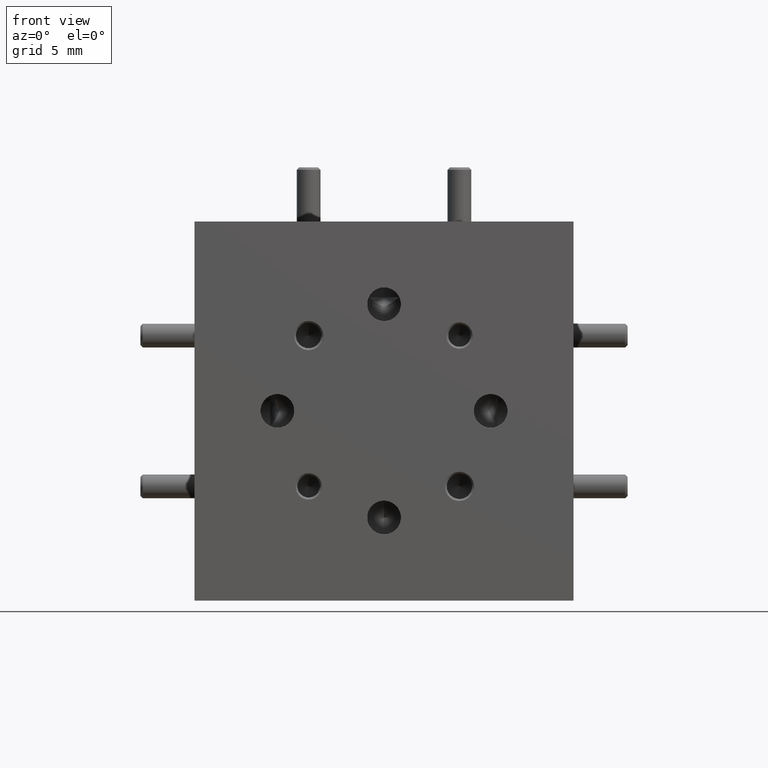
[diagram: clean part render]
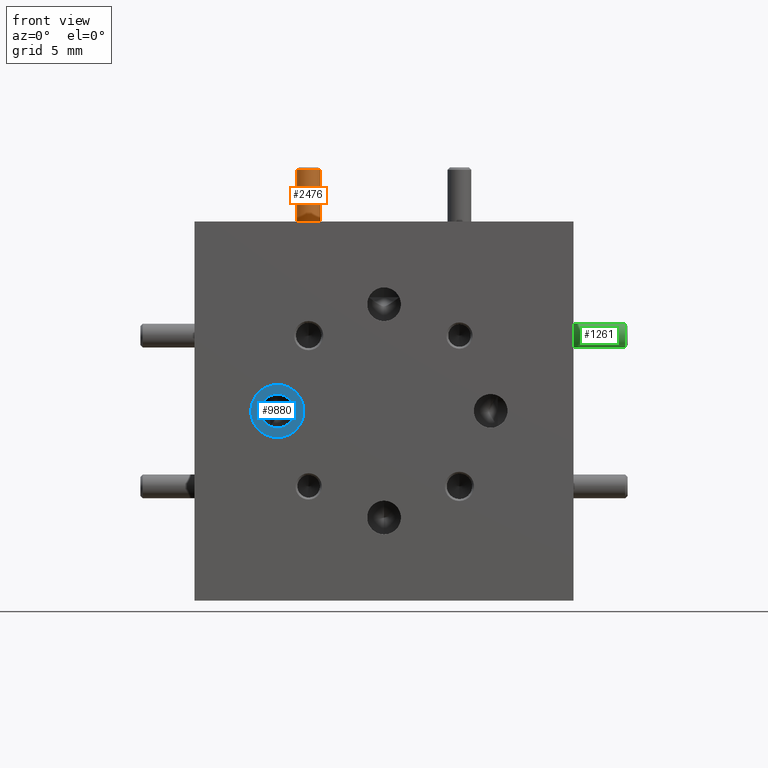
[diagram: same view with three faces highlighted in distinct colors, each labeled with its STEP entity id]
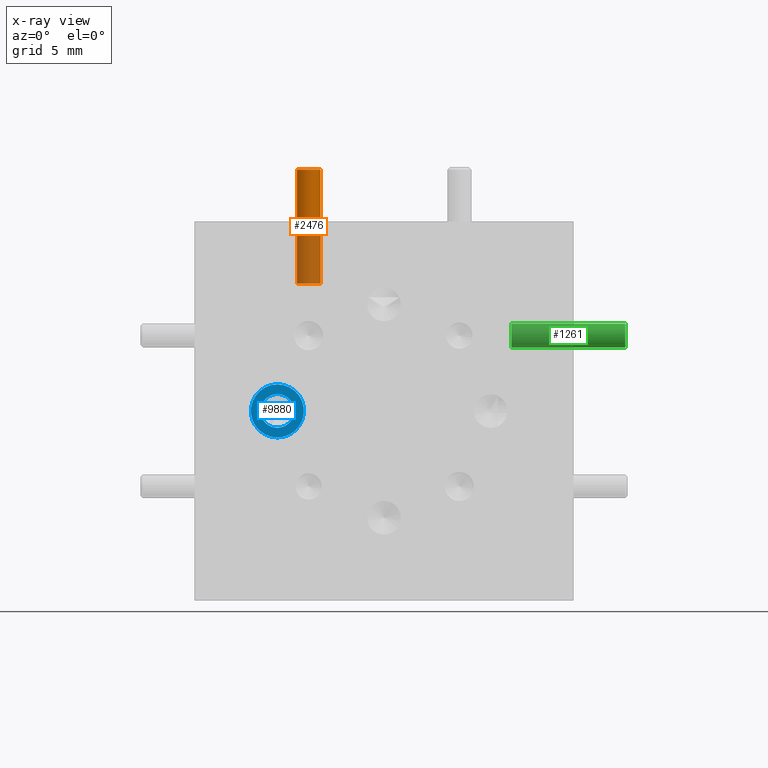
[diagram: x-ray of the same camera — body ghosted, the three highlighted faces saturated]
A machine part, front view with three faces highlighted in distinct colors.
The next image is the same camera in x-ray (body ghosted, the three faces saturated) — at least one of them is partly hidden behind the body in this view.
Their STEP definitions:

[orange] entity #2476 — the highlighted cylindrical surface (edge-blend (fillet) strip) has radius 0.7938 mm, axis along (-0, 0, -1).
#175 = EDGE_LOOP ( 'NONE', ( #4093, #9148, #9571, #7627 ) ) ;
#323 = CARTESIAN_POINT ( 'NONE',  ( -0.2301237822087140700, 0.6988737822087165400, 0.6425000000000004000 ) ) ;
#903 = FACE_OUTER_BOUND ( 'NONE', #175, .T. ) ;
#926 = VERTEX_POINT ( 'NONE', #6537 ) ;
#1790 = DIRECTION ( 'NONE',  ( -1.000000000000000000, 0.0000000000000000000, 4.370956789862786400E-015 ) ) ;
#2476 = ADVANCED_FACE ( 'NONE', ( #903 ), #5269, .T. ) ;
#2618 = CIRCLE ( 'NONE', #5433, 0.03125000000000025000 ) ;
#2968 = CARTESIAN_POINT ( 'NONE',  ( -0.1988737822087150400, 0.6988737822087165400, 0.3362500000000002700 ) ) ;
#2972 = AXIS2_PLACEMENT_3D ( 'NONE', #8582, #9596, #1790 ) ;
#3243 = VERTEX_POINT ( 'NONE', #8367 ) ;
#3361 = DIRECTION ( 'NONE',  ( -1.000000000000000000, 0.0000000000000000000, 4.370956789862791200E-015 ) ) ;
#3671 = DIRECTION ( 'NONE',  ( 3.880059397461938100E-015, -8.782449295850726500E-018, 1.000000000000000000 ) ) ;
#3704 = LINE ( 'NONE', #323, #5504 ) ;
#3775 = DIRECTION ( 'NONE',  ( -1.000000000000000000, 0.0000000000000000000, 4.370956789862786400E-015 ) ) ;
#4088 = CARTESIAN_POINT ( 'NONE',  ( -0.1988737822087138500, 0.6988737822087165400, 0.6425000000000002900 ) ) ;
#4093 = ORIENTED_EDGE ( 'NONE', *, *, #6783, .F. ) ;
#4220 = CIRCLE ( 'NONE', #2972, 0.03125000000000025000 ) ;
#4266 = CARTESIAN_POINT ( 'NONE',  ( -0.2301237822094769300, 0.6988737822087165400, 0.3362500000000003800 ) ) ;
#5071 = AXIS2_PLACEMENT_3D ( 'NONE', #4088, #5700, #3361 ) ;
#5269 = CYLINDRICAL_SURFACE ( 'NONE', #5071, 0.03125000000000021500 ) ;
#5433 = AXIS2_PLACEMENT_3D ( 'NONE', #2968, #3671, #3775 ) ;
#5504 = VECTOR ( 'NONE', #7334, 39.37007874015748100 ) ;
#5653 = EDGE_CURVE ( 'NONE', #3243, #926, #4220, .T. ) ;
#5700 = DIRECTION ( 'NONE',  ( -3.880059397461938100E-015, 8.782449295850726500E-018, -1.000000000000000000 ) ) ;
#5806 = VERTEX_POINT ( 'NONE', #7148 ) ;
#6537 = CARTESIAN_POINT ( 'NONE',  ( -0.2301237822067913300, 0.6988737822087165400, 0.6362500000000009800 ) ) ;
#6783 = EDGE_CURVE ( 'NONE', #3243, #5806, #7103, .T. ) ;
#6980 = EDGE_CURVE ( 'NONE', #9056, #5806, #2618, .T. ) ;
#7103 = LINE ( 'NONE', #9592, #10035 ) ;
#7148 = CARTESIAN_POINT ( 'NONE',  ( -0.1676237822079532400, 0.6988737822087165400, 0.3362500000000001600 ) ) ;
#7334 = DIRECTION ( 'NONE',  ( -3.880059397461938100E-015, 8.782449295850726500E-018, -1.000000000000000000 ) ) ;
#7627 = ORIENTED_EDGE ( 'NONE', *, *, #6980, .T. ) ;
#8098 = DIRECTION ( 'NONE',  ( -3.880059397461938100E-015, 8.782449295850726500E-018, -1.000000000000000000 ) ) ;
#8367 = CARTESIAN_POINT ( 'NONE',  ( -0.1676237822106365100, 0.6988737822087165400, 0.6362500000000007600 ) ) ;
#8499 = EDGE_CURVE ( 'NONE', #926, #9056, #3704, .T. ) ;
#8582 = CARTESIAN_POINT ( 'NONE',  ( -0.1988737822087138800, 0.6988737822087165400, 0.6362500000000008700 ) ) ;
#9056 = VERTEX_POINT ( 'NONE', #4266 ) ;
#9148 = ORIENTED_EDGE ( 'NONE', *, *, #5653, .T. ) ;
#9571 = ORIENTED_EDGE ( 'NONE', *, *, #8499, .T. ) ;
#9592 = CARTESIAN_POINT ( 'NONE',  ( -0.1676237822087136300, 0.6988737822087165400, 0.6425000000000001800 ) ) ;
#9596 = DIRECTION ( 'NONE',  ( -3.880059397461938100E-015, 8.782449295850726500E-018, -1.000000000000000000 ) ) ;
#10035 = VECTOR ( 'NONE', #8098, 39.37007874015748100 ) ;

[blue] entity #9880 — the highlighted planar face has unit normal (0, -1, 0).
#360 = DIRECTION ( 'NONE',  ( -0.0000000000000000000, -1.000000000000000000, -0.0000000000000000000 ) ) ;
#470 = ORIENTED_EDGE ( 'NONE', *, *, #4547, .T. ) ;
#491 = DIRECTION ( 'NONE',  ( 0.0000000000000000000, 1.000000000000000000, 0.0000000000000000000 ) ) ;
#920 = EDGE_LOOP ( 'NONE', ( #8756, #470 ) ) ;
#964 = CIRCLE ( 'NONE', #2498, 0.04449999999999974100 ) ;
#1418 = CARTESIAN_POINT ( 'NONE',  ( -0.2812500000000000600, 0.02000000000000000000, 0.04449999999999974100 ) ) ;
#1419 = CIRCLE ( 'NONE', #1824, 0.06999999999999999300 ) ;
#1714 = EDGE_CURVE ( 'NONE', #3472, #1913, #8686, .T. ) ;
#1724 = FACE_OUTER_BOUND ( 'NONE', #9948, .T. ) ;
#1824 = AXIS2_PLACEMENT_3D ( 'NONE', #2172, #7587, #9065 ) ;
#1871 = EDGE_CURVE ( 'NONE', #1913, #3472, #1419, .T. ) ;
#1913 = VERTEX_POINT ( 'NONE', #6735 ) ;
#2172 = CARTESIAN_POINT ( 'NONE',  ( -0.2812500000000000600, 0.02000000000000000000, 0.0000000000000000000 ) ) ;
#2498 = AXIS2_PLACEMENT_3D ( 'NONE', #10009, #4571, #5218 ) ;
#2545 = CARTESIAN_POINT ( 'NONE',  ( -0.2812500000000000600, 0.02000000000000000000, -0.04449999999999974100 ) ) ;
#3396 = CARTESIAN_POINT ( 'NONE',  ( -0.2812500000000000600, 0.02000000000000000000, 0.06999999999999999300 ) ) ;
#3472 = VERTEX_POINT ( 'NONE', #3396 ) ;
#3652 = DIRECTION ( 'NONE',  ( 0.0000000000000000000, -0.0000000000000000000, -1.000000000000000000 ) ) ;
#3894 = ORIENTED_EDGE ( 'NONE', *, *, #1871, .T. ) ;
#4200 = VERTEX_POINT ( 'NONE', #1418 ) ;
#4443 = VERTEX_POINT ( 'NONE', #2545 ) ;
#4547 = EDGE_CURVE ( 'NONE', #4200, #4443, #6539, .T. ) ;
#4559 = DIRECTION ( 'NONE',  ( 0.0000000000000000000, -1.000000000000000000, 0.0000000000000000000 ) ) ;
#4571 = DIRECTION ( 'NONE',  ( 0.0000000000000000000, 1.000000000000000000, 0.0000000000000000000 ) ) ;
#5012 = EDGE_CURVE ( 'NONE', #4443, #4200, #964, .T. ) ;
#5018 = DIRECTION ( 'NONE',  ( 0.0000000000000000000, 0.0000000000000000000, -1.000000000000000000 ) ) ;
#5218 = DIRECTION ( 'NONE',  ( 0.0000000000000000000, 0.0000000000000000000, -1.000000000000000000 ) ) ;
#5274 = PLANE ( 'NONE',  #9267 ) ;
#5465 = FACE_BOUND ( 'NONE', #920, .T. ) ;
#5761 = ORIENTED_EDGE ( 'NONE', *, *, #1714, .T. ) ;
#6162 = AXIS2_PLACEMENT_3D ( 'NONE', #6588, #360, #9712 ) ;
#6539 = CIRCLE ( 'NONE', #7377, 0.04449999999999974100 ) ;
#6588 = CARTESIAN_POINT ( 'NONE',  ( -0.2812500000000000600, 0.02000000000000000000, 0.0000000000000000000 ) ) ;
#6735 = CARTESIAN_POINT ( 'NONE',  ( -0.2812500000000000600, 0.02000000000000000000, -0.06999999999999999300 ) ) ;
#6802 = CARTESIAN_POINT ( 'NONE',  ( -0.2812500000000000600, 0.02000000000000000000, 0.0000000000000000000 ) ) ;
#7377 = AXIS2_PLACEMENT_3D ( 'NONE', #8147, #491, #5018 ) ;
#7587 = DIRECTION ( 'NONE',  ( -0.0000000000000000000, -1.000000000000000000, -0.0000000000000000000 ) ) ;
#8147 = CARTESIAN_POINT ( 'NONE',  ( -0.2812500000000000600, 0.02000000000000000000, 0.0000000000000000000 ) ) ;
#8686 = CIRCLE ( 'NONE', #6162, 0.06999999999999999300 ) ;
#8756 = ORIENTED_EDGE ( 'NONE', *, *, #5012, .T. ) ;
#9065 = DIRECTION ( 'NONE',  ( 0.0000000000000000000, 0.0000000000000000000, -1.000000000000000000 ) ) ;
#9267 = AXIS2_PLACEMENT_3D ( 'NONE', #6802, #4559, #3652 ) ;
#9712 = DIRECTION ( 'NONE',  ( 0.0000000000000000000, 0.0000000000000000000, -1.000000000000000000 ) ) ;
#9880 = ADVANCED_FACE ( 'NONE', ( #5465, #1724 ), #5274, .T. ) ;
#9948 = EDGE_LOOP ( 'NONE', ( #3894, #5761 ) ) ;
#10009 = CARTESIAN_POINT ( 'NONE',  ( -0.2812500000000000600, 0.02000000000000000000, 0.0000000000000000000 ) ) ;

[green] entity #1261 — the highlighted cylindrical surface (edge-blend (fillet) strip) has radius 0.7938 mm, axis along (-1, 0, 0).
#18 = EDGE_CURVE ( 'NONE', #9872, #6411, #6852, .T. ) ;
#61 = CYLINDRICAL_SURFACE ( 'NONE', #62, 0.03125000000000025000 ) ;
#62 = AXIS2_PLACEMENT_3D ( 'NONE', #8138, #3589, #5810 ) ;
#469 = DIRECTION ( 'NONE',  ( 8.741913579725582300E-015, 0.0000000000000000000, 1.000000000000000000 ) ) ;
#860 = ORIENTED_EDGE ( 'NONE', *, *, #9849, .T. ) ;
#901 = CARTESIAN_POINT ( 'NONE',  ( 0.3362500000000009400, 0.6988737822087165400, 0.1988737822087138800 ) ) ;
#1190 = DIRECTION ( 'NONE',  ( -1.000000000000000000, 1.535810180263773200E-017, 7.371540736305071500E-015 ) ) ;
#1261 = ADVANCED_FACE ( 'NONE', ( #8571 ), #61, .T. ) ;
#1413 = VERTEX_POINT ( 'NONE', #8442 ) ;
#1554 = VERTEX_POINT ( 'NONE', #9436 ) ;
#1910 = CARTESIAN_POINT ( 'NONE',  ( 0.6425000000000007400, 0.6988737822087165400, 0.1676237822087113800 ) ) ;
#2342 = VECTOR ( 'NONE', #6113, 39.37007874015748100 ) ;
#2394 = EDGE_LOOP ( 'NONE', ( #2637, #5582, #860, #4931 ) ) ;
#2637 = ORIENTED_EDGE ( 'NONE', *, *, #18, .F. ) ;
#2725 = VECTOR ( 'NONE', #1190, 39.37007874015748100 ) ;
#3589 = DIRECTION ( 'NONE',  ( -1.000000000000000000, 1.535810180263773200E-017, 7.371540736305071500E-015 ) ) ;
#4098 = CARTESIAN_POINT ( 'NONE',  ( 0.3362500000000007700, 0.6988737822087165400, 0.1676237822082088900 ) ) ;
#4661 = DIRECTION ( 'NONE',  ( 6.556435184794179700E-015, 0.0000000000000000000, 1.000000000000000000 ) ) ;
#4931 = ORIENTED_EDGE ( 'NONE', *, *, #5546, .T. ) ;
#5546 = EDGE_CURVE ( 'NONE', #1554, #6411, #6158, .T. ) ;
#5582 = ORIENTED_EDGE ( 'NONE', *, *, #5882, .T. ) ;
#5769 = DIRECTION ( 'NONE',  ( -1.000000000000000000, 1.535810180263773200E-017, 7.371540736305071500E-015 ) ) ;
#5810 = DIRECTION ( 'NONE',  ( 8.741913579725572900E-015, 0.0000000000000000000, 1.000000000000000000 ) ) ;
#5882 = EDGE_CURVE ( 'NONE', #9872, #1413, #5918, .T. ) ;
#5918 = CIRCLE ( 'NONE', #8690, 0.03125000000000021500 ) ;
#6113 = DIRECTION ( 'NONE',  ( -1.000000000000000000, 1.535810180263773200E-017, 7.371540736305071500E-015 ) ) ;
#6158 = CIRCLE ( 'NONE', #6451, 0.03125000000000025000 ) ;
#6411 = VERTEX_POINT ( 'NONE', #4098 ) ;
#6451 = AXIS2_PLACEMENT_3D ( 'NONE', #901, #7785, #4661 ) ;
#6708 = LINE ( 'NONE', #7629, #2342 ) ;
#6852 = LINE ( 'NONE', #1910, #2725 ) ;
#7629 = CARTESIAN_POINT ( 'NONE',  ( 0.6425000000000012900, 0.6988737822087165400, 0.2301237822087118800 ) ) ;
#7785 = DIRECTION ( 'NONE',  ( 1.000000000000000000, -1.535810180263773200E-017, -7.371540736305071500E-015 ) ) ;
#8138 = CARTESIAN_POINT ( 'NONE',  ( 0.6425000000000009600, 0.6988737822087165400, 0.1988737822087116300 ) ) ;
#8163 = CARTESIAN_POINT ( 'NONE',  ( 0.6362500000000015400, 0.6988737822087165400, 0.1988737822087116600 ) ) ;
#8442 = CARTESIAN_POINT ( 'NONE',  ( 0.6362500000000018700, 0.6988737822087165400, 0.2301237822081656200 ) ) ;
#8571 = FACE_OUTER_BOUND ( 'NONE', #2394, .T. ) ;
#8690 = AXIS2_PLACEMENT_3D ( 'NONE', #8163, #5769, #469 ) ;
#9436 = CARTESIAN_POINT ( 'NONE',  ( 0.3362500000000011600, 0.6988737822087165400, 0.2301237822092188100 ) ) ;
#9849 = EDGE_CURVE ( 'NONE', #1413, #1554, #6708, .T. ) ;
#9872 = VERTEX_POINT ( 'NONE', #9941 ) ;
#9941 = CARTESIAN_POINT ( 'NONE',  ( 0.6362500000000013100, 0.6988737822087165400, 0.1676237822092578600 ) ) ;